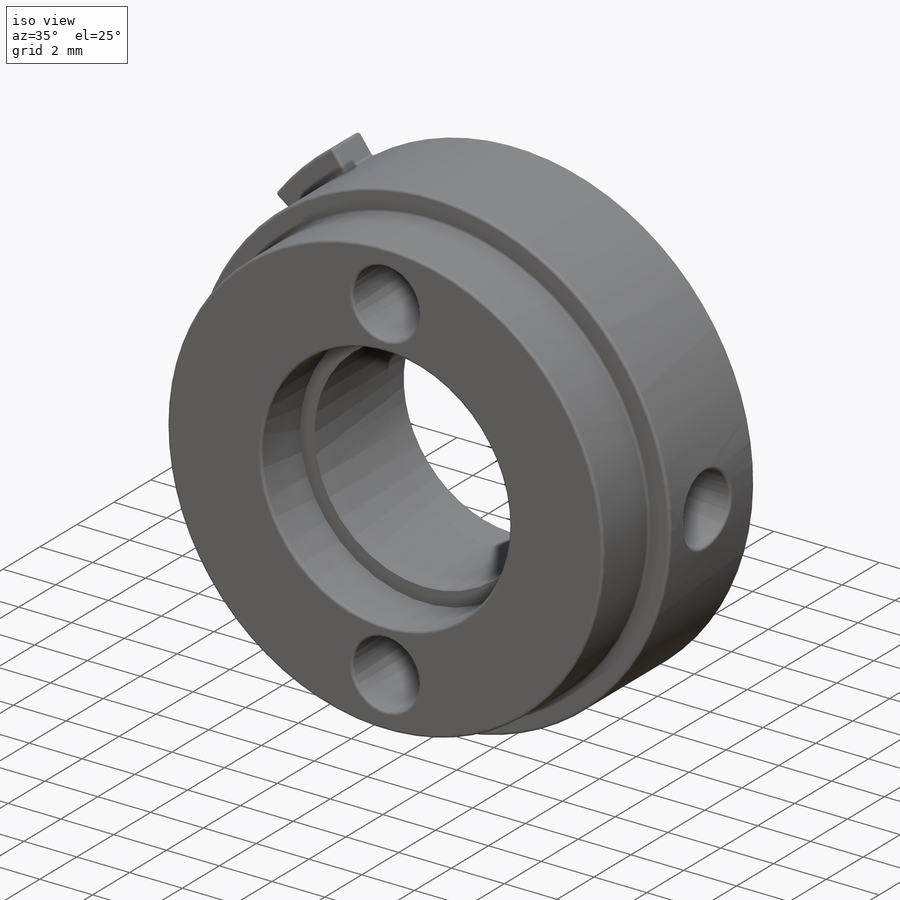
[diagram: iso view]
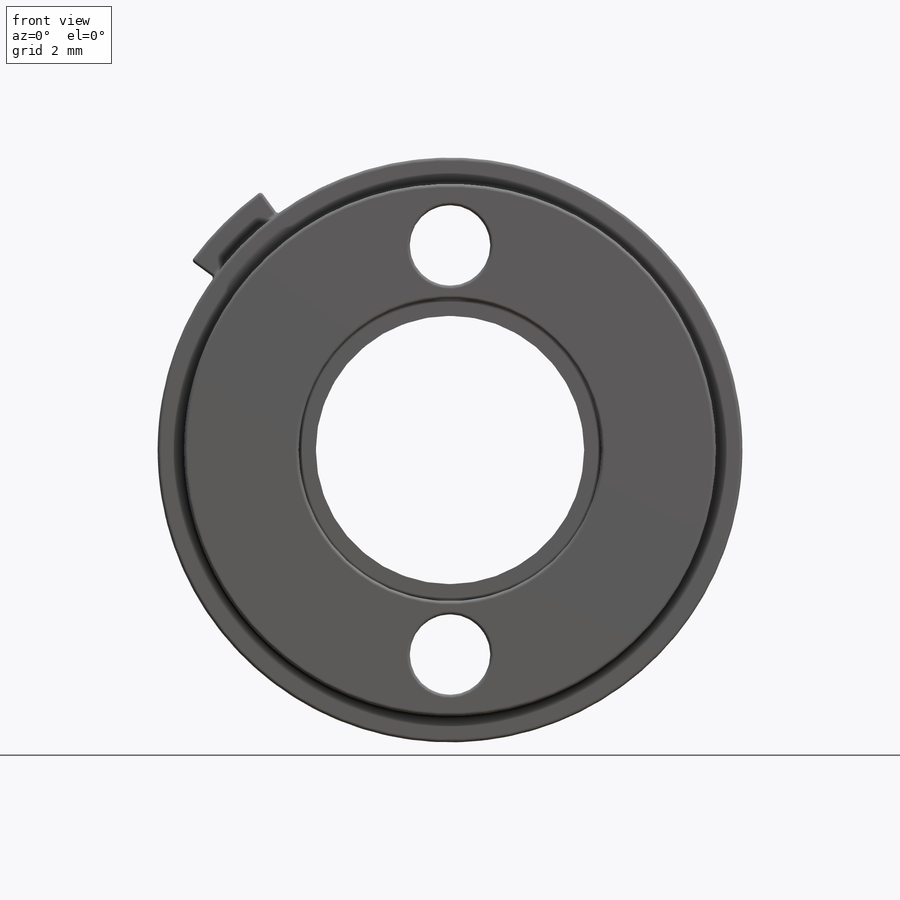
[diagram: front view]
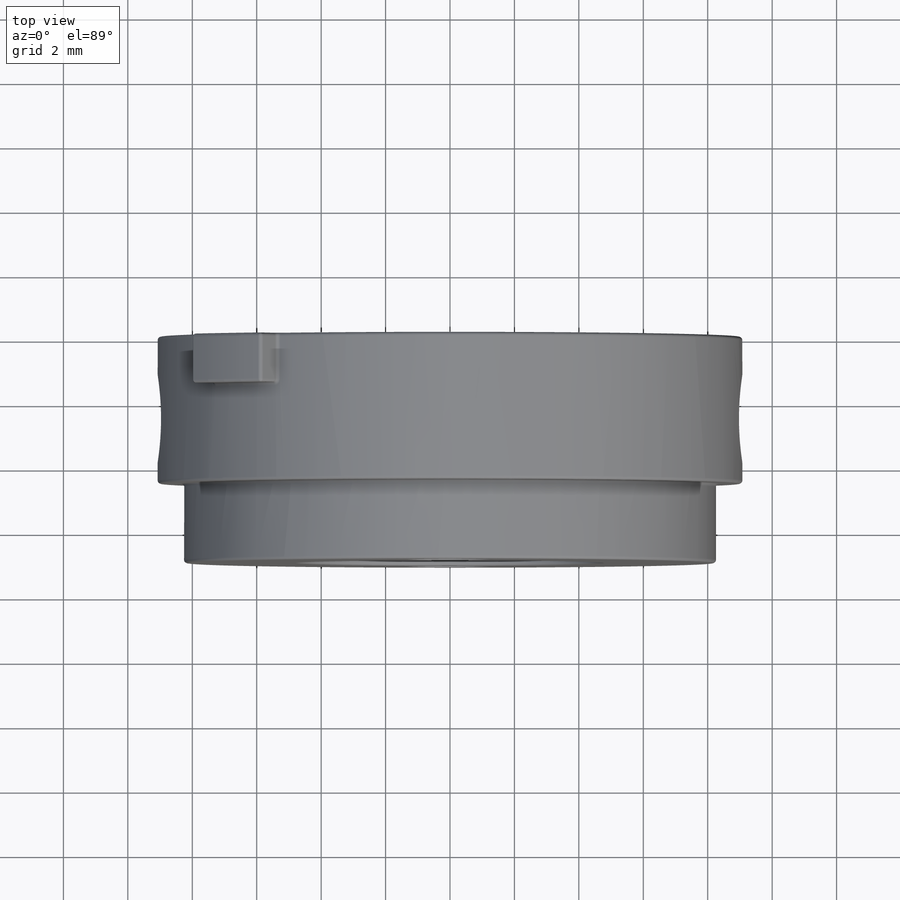
[diagram: top view]
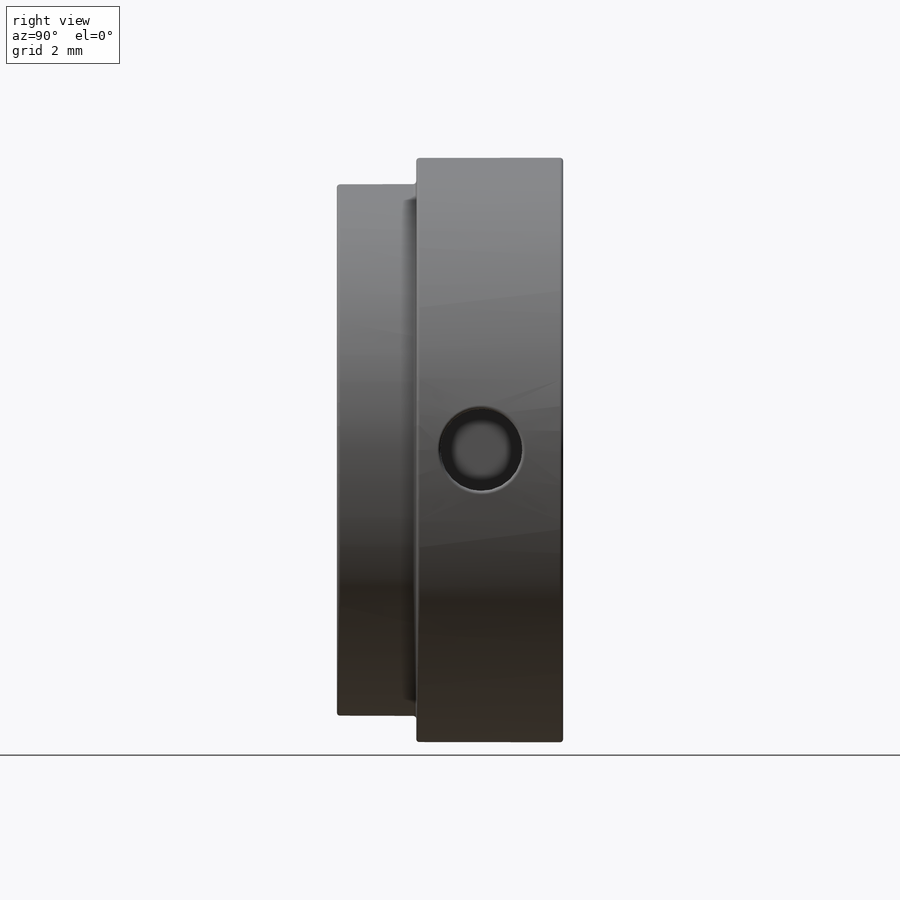
[diagram: right view]
SOLIDWORKS PART (.sldprt)
format: sldprt  version: not decoded by parser v0  size: 406,016 bytes
history: native  units: mm
features: sketch x10, cut_extrude x6, extrude x3, fillet x2, material x1 (+16 scaffold rows collapsed)
feature tree (38):
  scaffold x16  (default folders/planes/origin — collapsed)
  material  "Material <not specified>"
  sketch  "Sketch1"  dims[D1=18.1483mm]
  extrude  "Extrude1"  Depth=4.5593mm
  sketch  "Sketch2"  dims[D1=16.51mm]
  extrude  "Extrude2"  Depth=7.0231mm
  sketch  "Sketch3"  dims[D1=8.3312mm]
  cut_extrude  "Extrude3"  [1 undecoded]
  sketch  "Sketch4"  dims[D1=9.398mm]
  cut_extrude  "Extrude4"  Depth=2.1209mm
  sketch  "Sketch5"  dims[D1=12.7mm]
  sketch  "Sketch7"  dims[D1=2.5019mm D2=2.5019mm]
  cut_extrude  "Extrude5"  [1 undecoded]
  sketch  "Sketch8"  dims[D1=3.8862mm]
  cut_extrude  "Extrude6"  [1 undecoded]
  sketch  "Sketch9"  dims[c1.D1=~9.07415mm c2.D1=45.0deg c2.D3=3.048mm c2.D2=0.8636mm]
  extrude  "Extrude7"  Depth=1.524mm
  sketch  "Sketch10"  dims[D2=2.54mm D1=2.54mm]
  cut_extrude  "Extrude8"  [1 undecoded]
  cut_extrude  "Extrude10"  [1 undecoded]
  sketch  "Sketch10<3>"
  fillet  "Fillet1"  Radius=0.099219mm
  fillet  "Fillet2"  Radius=0.099219mm
decode coverage: 15 of 21 modeling features carry decoded parameters
note: ~ marks probable driven/reference dimensions
note: 5 parameter values undecoded
summary: no parameter record found for 5 features
note: suppression state not decoded; provenance and decode notes live in map.json
